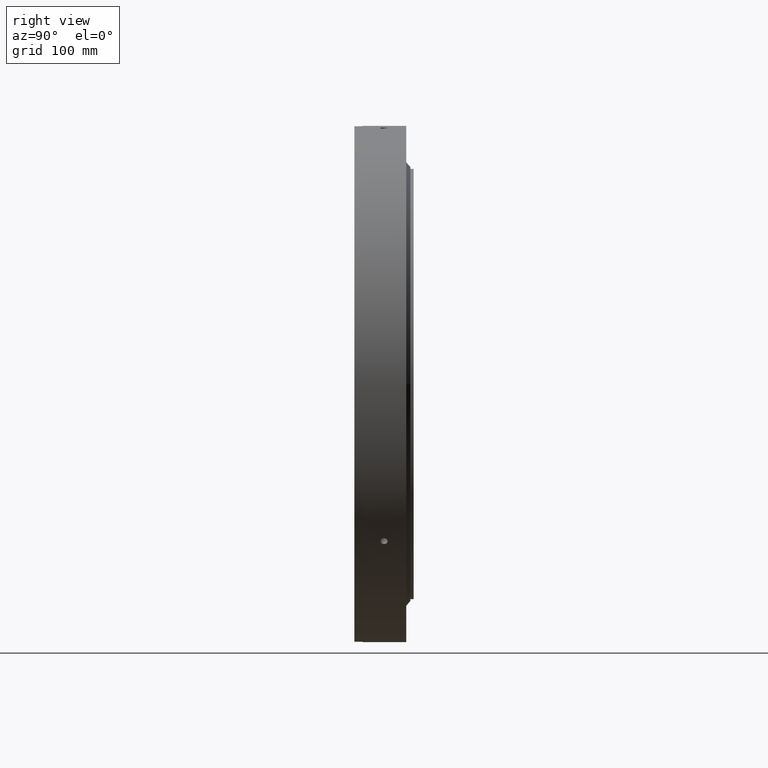
[diagram: clean part render]
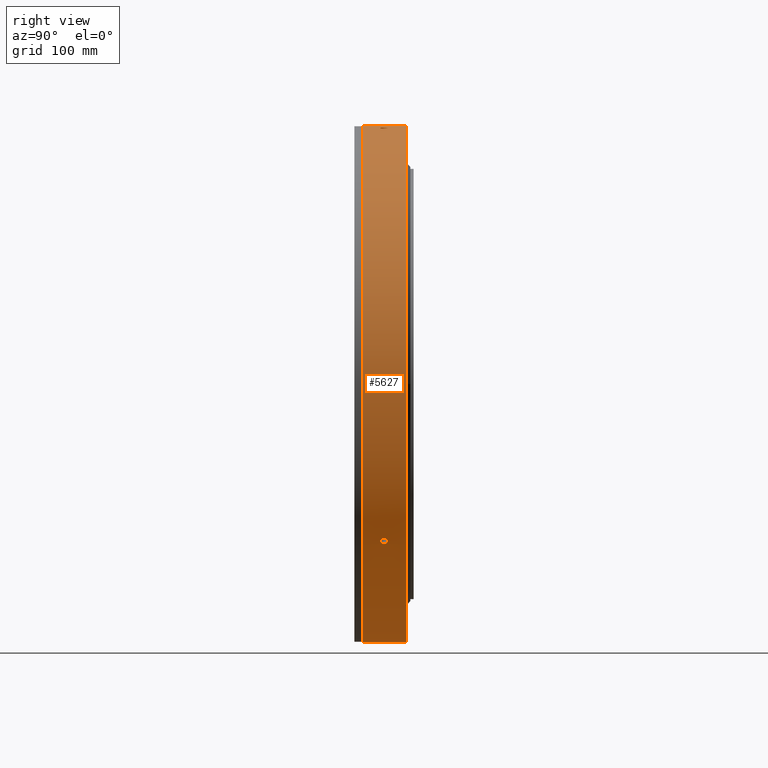
[diagram: same view with one face highlighted and labeled with its STEP entity id]
A machine part, right view. The second image highlights one B-rep face of the part: STEP entity #5627.
In plain terms, the highlighted cylindrical surface (partial cylindrical patch) has radius 313 mm, axis along (-0, 1, -0).
Its self-contained STEP definition (entity closure, byte-faithful):
#2 = CARTESIAN_POINT ( 'NONE',  ( 42.01249492581564500, -4.355841187476847200, 310.1677524236763500 ) ) ;
#4 = CARTESIAN_POINT ( 'NONE',  ( 36.97806128729717300, 2.252569872384337000, 310.8080598504994900 ) ) ;
#10 = CARTESIAN_POINT ( 'NONE',  ( 41.43673768239570900, -4.471353546787452300, 310.2451951983898100 ) ) ;
#13 = CARTESIAN_POINT ( 'NONE',  ( 41.14727925305311400, -4.499895653902052900, 310.2837210659382700 ) ) ;
#26 = CARTESIAN_POINT ( 'NONE',  ( 36.83991738933058700, 1.991454826082301300, 310.8244408747211800 ) ) ;
#33 = CARTESIAN_POINT ( 'NONE',  ( 36.61693397199744000, -1.449127353490576000, 310.8507888122217700 ) ) ;
#55 = CARTESIAN_POINT ( 'NONE',  ( 36.38897377752741800, 4.781560686371049600E-009, 310.8775363184327000 ) ) ;
#57 = CARTESIAN_POINT ( 'NONE',  ( 37.48981214226047600, 2.972155427204408600, 310.7467730453549300 ) ) ;
#73 = CARTESIAN_POINT ( 'NONE',  ( 36.61733785011660600, 1.449893656899620800, 310.8507409145203700 ) ) ;
#78 = CARTESIAN_POINT ( 'NONE',  ( 40.55678157144130600, 4.499748922822593800, 310.3614594326489300 ) ) ;
#109 = CARTESIAN_POINT ( 'NONE',  ( 38.13092356018345400, 3.577392212863129900, 310.6687826988262500 ) ) ;
#115 = CARTESIAN_POINT ( 'NONE',  ( 39.41279675344192400, 4.268828962022665200, 310.5087848326819000 ) ) ;
#130 = CARTESIAN_POINT ( 'NONE',  ( 38.87298644545599300, 4.042871837507990000, 310.5768261332583500 ) ) ;
#159 = VERTEX_POINT ( 'NONE', #1307 ) ;
#163 = CARTESIAN_POINT ( 'NONE',  ( 38.61661957952914300, 3.904560608749239500, 310.6087837897907200 ) ) ;
#173 = CARTESIAN_POINT ( 'NONE',  ( 0.0000000000000000000, -26.00000000000001100, -1.870852563579005500E-015 ) ) ;
#183 = CARTESIAN_POINT ( 'NONE',  ( 40.26715415030922400, 4.470444970941521500, 310.3991607748973800 ) ) ;
#200 = CARTESIAN_POINT ( 'NONE',  ( 41.14511159394957200, 4.500247904899090700, 310.2840115515442700 ) ) ;
#229 = CARTESIAN_POINT ( 'NONE',  ( 45.16788019187426100, 1.173644481258605100, 309.7238544081364500 ) ) ;
#230 = AXIS2_PLACEMENT_3D ( 'NONE', #173, #474, #364 ) ;
#231 = CARTESIAN_POINT ( 'NONE',  ( 37.90717377756580200, -3.392747403317223600, 310.6961382454445600 ) ) ;
#240 = CARTESIAN_POINT ( 'NONE',  ( 36.38897377752743300, -0.2936974223991016300, 310.8775363184327000 ) ) ;
#249 = CARTESIAN_POINT ( 'NONE',  ( 36.53244950377602900, -1.168570931656106100, 310.8607138913116000 ) ) ;
#253 = CARTESIAN_POINT ( 'NONE',  ( 42.28860587565795700, 4.271330160007757100, 310.1302118412396000 ) ) ;
#257 = CARTESIAN_POINT ( 'NONE',  ( 39.69666838837774500, 4.355726754575623100, 310.4726352385803200 ) ) ;
#259 = CARTESIAN_POINT ( 'NONE',  ( 42.82937027364134500, 4.045619703833195600, 310.0559941777648900 ) ) ;
#263 = CARTESIAN_POINT ( 'NONE',  ( 43.56974527745738600, 3.581686789275463600, 309.9527981228477000 ) ) ;
#270 = CARTESIAN_POINT ( 'NONE',  ( 37.49002126320339600, -2.972762010858454900, 310.7467497016172000 ) ) ;
#271 = CARTESIAN_POINT ( 'NONE',  ( 40.56528055425561500, -4.500103770919797500, 310.3603456661436400 ) ) ;
#274 = CARTESIAN_POINT ( 'NONE',  ( 44.72090831962645300, 2.259568660996385900, 309.7887464090662200 ) ) ;
#277 = CARTESIAN_POINT ( 'NONE',  ( 39.41892803318325600, -4.270945890496514100, 310.5080068665233200 ) ) ;
#283 = CARTESIAN_POINT ( 'NONE',  ( 40.26966017895869500, -4.470844184222714000, 310.3988365841547100 ) ) ;
#284 = CARTESIAN_POINT ( 'NONE',  ( 39.69721040011099000, -4.355939892438203600, 310.4725668560346900 ) ) ;
#288 = CARTESIAN_POINT ( 'NONE',  ( 43.79930768056002000, 3.391797598056024700, 309.9204153554657600 ) ) ;
#290 = CARTESIAN_POINT ( 'NONE',  ( 38.87835616195878400, -4.045559581703725100, 310.5761543287733300 ) ) ;
#292 = CARTESIAN_POINT ( 'NONE',  ( 38.61681891911085500, -3.904596301180523800, 310.6087583437070000 ) ) ;
#308 = CARTESIAN_POINT ( 'NONE',  ( 38.13279649819745700, -3.578751981498479000, 310.6685521491962700 ) ) ;
#312 = CARTESIAN_POINT ( 'NONE',  ( 42.29350735768304800, -4.269498376676340400, 310.1295415822266400 ) ) ;
#313 = CARTESIAN_POINT ( 'NONE',  ( 42.83005470384049600, -4.045117715904894800, 310.0558977679388600 ) ) ;
#331 = CARTESIAN_POINT ( 'NONE',  ( 44.85993022911199500, 1.997045766983342100, 309.7686222062096700 ) ) ;
#341 = CARTESIAN_POINT ( 'NONE',  ( 45.31197752989172800, -0.2973295846071527000, 309.7028005884523600 ) ) ;
#347 = CARTESIAN_POINT ( 'NONE',  ( 45.31197752989172000, 4.781559253240726900E-009, 309.7028005884522500 ) ) ;
#349 = CARTESIAN_POINT ( 'NONE',  ( 45.31197752989172000, 4.781559253240726900E-009, 309.7028005884522500 ) ) ;
#352 = CARTESIAN_POINT ( 'NONE',  ( 45.28310382865002700, -0.5896892760800510600, 309.7070289418161300 ) ) ;
#353 = CARTESIAN_POINT ( 'NONE',  ( 45.28311344739518100, 0.5914388478671582800, 309.7070277326145100 ) ) ;
#363 = CARTESIAN_POINT ( 'NONE',  ( 45.16996522805119000, -1.164875585572372700, 309.7235501372472300 ) ) ;
#364 = DIRECTION ( 'NONE',  ( 0.0000000000000000000, 5.542247527082451000E-017, 1.000000000000000000 ) ) ;
#368 = CARTESIAN_POINT ( 'NONE',  ( 45.08432705229464000, -1.450681284605115100, 309.7360428114608900 ) ) ;
#369 = CARTESIAN_POINT ( 'NONE',  ( 44.86073107785225000, -1.995689781120564700, 309.7685064195875400 ) ) ;
#375 = CARTESIAN_POINT ( 'NONE',  ( 44.72389628541721200, -2.254178133049698800, 309.7883144602545300 ) ) ;
#381 = CARTESIAN_POINT ( 'NONE',  ( 44.40057365357417000, -2.743374535401384300, 309.8348200804870200 ) ) ;
#383 = CARTESIAN_POINT ( 'NONE',  ( 45.31197752989173500, 0.2972624423850837000, 309.7028005884524800 ) ) ;
#388 = CARTESIAN_POINT ( 'NONE',  ( 43.80119704142310900, -3.390111961688711000, 309.9201481925617800 ) ) ;
#396 = CARTESIAN_POINT ( 'NONE',  ( 44.21236916611923100, -2.974984258971414200, 309.8617587419909700 ) ) ;
#414 = CARTESIAN_POINT ( 'NONE',  ( 44.39536513953721200, 2.750363332688170900, 309.8355670299333700 ) ) ;
#442 = CARTESIAN_POINT ( 'NONE',  ( 36.98114278795301100, -2.257531372928843500, 310.8076923700738200 ) ) ;
#468 = CARTESIAN_POINT ( 'NONE',  ( 45.08248526435087200, 1.455759623187266000, 309.7363107000595100 ) ) ;
#474 = DIRECTION ( 'NONE',  ( -0.0000000000000000000, 1.000000000000000000, -5.328613396463909800E-017 ) ) ;
#515 = CARTESIAN_POINT ( 'NONE',  ( 3.833144481331215800E-014, 27.00000000000000000, -313.0000000000000000 ) ) ;
#531 = CARTESIAN_POINT ( 'NONE',  ( 0.0000000000000000000, 22.16364734299516900, 313.0000000000000000 ) ) ;
#538 = CARTESIAN_POINT ( 'NONE',  ( 43.08550378603891300, 3.907533659084907500, 310.0204817931043000 ) ) ;
#561 = CARTESIAN_POINT ( 'NONE',  ( 0.0000000000000000000, 27.00000000000000000, 0.0000000000000000000 ) ) ;
#564 = CYLINDRICAL_SURFACE ( 'NONE', #2602, 313.0000000000000000 ) ;
#576 = CARTESIAN_POINT ( 'NONE',  ( 42.00603039288012000, 4.357377239424615700, 310.1686252137570200 ) ) ;
#691 = AXIS2_PLACEMENT_3D ( 'NONE', #561, #714, #790 ) ;
#697 = DIRECTION ( 'NONE',  ( -0.0000000000000000000, 1.000000000000000000, -0.0000000000000000000 ) ) ;
#714 = DIRECTION ( 'NONE',  ( -0.0000000000000000000, 1.000000000000000000, -0.0000000000000000000 ) ) ;
#790 = DIRECTION ( 'NONE',  ( 0.0000000000000000000, 0.0000000000000000000, 1.000000000000000000 ) ) ;
#977 = VERTEX_POINT ( 'NONE', #2963 ) ;
#999 = LINE ( 'NONE', #5775, #5791 ) ;
#1000 = CARTESIAN_POINT ( 'NONE',  ( 37.30477417848354800, -2.744959215117991100, 310.7690145136830300 ) ) ;
#1035 = VERTEX_POINT ( 'NONE', #3441 ) ;
#1189 = CARTESIAN_POINT ( 'NONE',  ( 250.1171616894931200, -3.392747403317210700, -188.1766445997666900 ) ) ;
#1214 = CARTESIAN_POINT ( 'NONE',  ( 36.41820692938615900, -0.5919647935779345200, 310.8741184335072500 ) ) ;
#1242 = CARTESIAN_POINT ( 'NONE',  ( 43.08954377663947400, -3.905342523506585700, 310.0199215152164200 ) ) ;
#1307 = CARTESIAN_POINT ( 'NONE',  ( 3.833144481331215800E-014, -26.00000000000002500, -313.0000000000000000 ) ) ;
#1310 = CARTESIAN_POINT ( 'NONE',  ( 245.5545041678390100, 4.781557114753856100E-009, -194.0927239308231000 ) ) ;
#1437 = CARTESIAN_POINT ( 'NONE',  ( 43.57681870195252600, -3.576387510117315500, 309.9518049487646700 ) ) ;
#1473 = CARTESIAN_POINT ( 'NONE',  ( 245.6971180162413500, -1.450681284605113100, -193.9121939455448000 ) ) ;
#1478 = CARTESIAN_POINT ( 'NONE',  ( 245.6434799551328200, -1.164875585572369600, -193.9801124441768000 ) ) ;
#1490 = CARTESIAN_POINT ( 'NONE',  ( 245.5726028798892500, -0.5896892760800489500, -194.0698327487285200 ) ) ;
#1497 = CARTESIAN_POINT ( 'NONE',  ( 245.5545041678391000, -0.2973295846071530900, -194.0927239308231000 ) ) ;
#1509 = B_SPLINE_CURVE_WITH_KNOTS ( 'NONE', 3,
 ( #1310, #1497, #1490, #1478, #1473, #1692, #1683, #1605, #1632, #1627, #1582, #1581, #1575, #1574, #1620, #1617, #1550, #1598, #1587, #1656, #1567, #1561, #1671, #1669, #1189, #5468, #5486, #5379, #5387, #2342, #5394, #5364, #5369, #5372 ),
 .UNSPECIFIED., .F., .F.,
 ( 4, 2, 2, 2, 2, 2, 2, 2, 2, 2, 2, 2, 2, 2, 2, 2, 4 ),
 ( 1.604020230370983500E-018, 0.0008793274170397583600, 0.001758654834079515000, 0.002637982251119271700, 0.003517309668159028700, 0.004396637085198785600, 0.005275964502238541700, 0.006155291919278298700, 0.007034619336318055600, 0.007913946753357811700, 0.008793274170397569500, 0.009672601587437325600, 0.01055192900447708200, 0.01143125642151684000, 0.01231058383855659600, 0.01318991125559635300, 0.01406923867263611000 ),
 .UNSPECIFIED. ) ;
#1519 = EDGE_LOOP ( 'NONE', ( #4387, #4346, #4350, #4317 ) ) ;
#1550 = CARTESIAN_POINT ( 'NONE',  ( 248.1399451973399000, -4.499895653902052900, -190.7764496627266300 ) ) ;
#1561 = CARTESIAN_POINT ( 'NONE',  ( 249.5276613774137800, -4.045559581703721500, -188.9577212580234400 ) ) ;
#1567 = CARTESIAN_POINT ( 'NONE',  ( 249.1983580082896000, -4.270945890496509600, -189.3917964999500600 ) ) ;
#1574 = CARTESIAN_POINT ( 'NONE',  ( 247.4333077953883700, -4.269498376676340400, -191.6920225780121100 ) ) ;
#1575 = CARTESIAN_POINT ( 'NONE',  ( 247.1012567083047300, -4.045117715904895700, -192.1198643029736400 ) ) ;
#1581 = CARTESIAN_POINT ( 'NONE',  ( 246.9403558231146600, -3.905342523506589700, -192.3266003056607500 ) ) ;
#1582 = CARTESIAN_POINT ( 'NONE',  ( 246.6377276834923000, -3.576387510117317700, -192.7145344863831400 ) ) ;
#1587 = CARTESIAN_POINT ( 'NONE',  ( 248.6784476975323900, -4.470844184222710500, -190.0739670088233300 ) ) ;
#1598 = CARTESIAN_POINT ( 'NONE',  ( 248.4973033970714200, -4.500103770919799300, -190.3107363047012900 ) ) ;
#1605 = CARTESIAN_POINT ( 'NONE',  ( 246.1245383398947700, -2.743374535401383000, -193.3694347668418900 ) ) ;
#1612 = VECTOR ( 'NONE', #697, 1000.000000000000000 ) ;
#1617 = CARTESIAN_POINT ( 'NONE',  ( 247.9618516026687900, -4.471353546787453200, -191.0078650821026800 ) ) ;
#1620 = CARTESIAN_POINT ( 'NONE',  ( 247.6069055707174000, -4.355841187476850800, -191.4677640939605100 ) ) ;
#1627 = CARTESIAN_POINT ( 'NONE',  ( 246.4981229586839200, -3.390111961688715400, -192.8930234503222000 ) ) ;
#1632 = CARTESIAN_POINT ( 'NONE',  ( 246.2419701488284700, -2.974984258971418600, -193.2199142303517200 ) ) ;
#1656 = CARTESIAN_POINT ( 'NONE',  ( 249.0285248754321700, -4.355939892438195600, -189.6150760938903700 ) ) ;
#1669 = CARTESIAN_POINT ( 'NONE',  ( 249.9804600690349900, -3.578751981498477200, -188.3582465593805800 ) ) ;
#1671 = CARTESIAN_POINT ( 'NONE',  ( 249.6866659040357200, -3.904596301180521600, -188.7475253691482100 ) ) ;
#1683 = CARTESIAN_POINT ( 'NONE',  ( 245.9226019754330500, -2.254178133049697900, -193.6261875695202000 ) ) ;
#1692 = CARTESIAN_POINT ( 'NONE',  ( 245.8370303127987000, -1.995689781120562500, -193.7347859555570200 ) ) ;
#1915 = VERTEX_POINT ( 'NONE', #515 ) ;
#2309 = CIRCLE ( 'NONE', #230, 313.0000000000000000 ) ;
#2342 = CARTESIAN_POINT ( 'NONE',  ( 250.8962129118160100, -1.449127353490574000, -187.1365894345593100 ) ) ;
#2542 = CARTESIAN_POINT ( 'NONE',  ( 0.0000000000000000000, 27.00000000000000000, 313.0000000000000000 ) ) ;
#2602 = AXIS2_PLACEMENT_3D ( 'NONE', #2950, #2912, #2955 ) ;
#2631 = CARTESIAN_POINT ( 'NONE',  ( 37.90139096711509800, 3.387315662040350200, 310.6968418496093700 ) ) ;
#2651 = LINE ( 'NONE', #531, #1612 ) ;
#2685 = VERTEX_POINT ( 'NONE', #4581 ) ;
#2730 = B_SPLINE_CURVE_WITH_KNOTS ( 'NONE', 3,
 ( #5417, #5314, #5431, #5438, #5449, #5456, #5480, #5489, #5495, #5511, #5526, #5528, #5536, #5545, #5550, #5553, #5559, #5577, #5582, #5585, #5593, #5600, #5602, #5609, #5610, #5626, #5630, #5636, #5653, #5659, #5660, #5675, #5688, #5701 ),
 .UNSPECIFIED., .F., .F.,
 ( 4, 2, 2, 2, 2, 2, 2, 2, 2, 2, 2, 2, 2, 2, 2, 2, 4 ),
 ( 0.01406923867263611000, 0.01494836749388208000, 0.01582749631512805200, 0.01670662513637402200, 0.01758575395761999300, 0.01846488277886596300, 0.01934401160011193400, 0.02022314042135790700, 0.02110226924260387800, 0.02198139806384984800, 0.02286052688509581500, 0.02373965570634178900, 0.02461878452758775900, 0.02549791334883373000, 0.02637704217007969700, 0.02725617099132567100, 0.02813529981257163700 ),
 .UNSPECIFIED. ) ;
#2912 = DIRECTION ( 'NONE',  ( -0.0000000000000000000, 1.000000000000000000, -0.0000000000000000000 ) ) ;
#2950 = CARTESIAN_POINT ( 'NONE',  ( 0.0000000000000000000, 22.16364734299516900, 0.0000000000000000000 ) ) ;
#2955 = DIRECTION ( 'NONE',  ( 0.0000000000000000000, 0.0000000000000000000, 1.000000000000000000 ) ) ;
#2963 = CARTESIAN_POINT ( 'NONE',  ( 245.5545041678390100, 4.781557114753856100E-009, -194.0927239308231000 ) ) ;
#3428 = ORIENTED_EDGE ( 'NONE', *, *, #5133, .T. ) ;
#3441 = CARTESIAN_POINT ( 'NONE',  ( 251.0333570289176100, 4.781560686371050400E-009, -186.9525438682020400 ) ) ;
#3708 = CARTESIAN_POINT ( 'NONE',  ( 44.21090634847323700, 2.976681268583294000, 309.8619676037174600 ) ) ;
#3716 = B_SPLINE_CURVE_WITH_KNOTS ( 'NONE', 3,
 ( #5823, #5832, #5833, #5851, #73, #26, #4, #5854, #57, #2631, #109, #163, #130, #115, #257, #183, #78, #200, #3755, #576, #253, #259, #538, #263, #288, #3708, #414, #274, #331, #468, #229, #353, #383, #347 ),
 .UNSPECIFIED., .F., .F.,
 ( 4, 2, 2, 2, 2, 2, 2, 2, 2, 2, 2, 2, 2, 2, 2, 2, 4 ),
 ( 0.01406923867263611100, 0.01494836749388208200, 0.01582749631512805200, 0.01670662513637402200, 0.01758575395761999300, 0.01846488277886596700, 0.01934401160011193700, 0.02022314042135790700, 0.02110226924260388100, 0.02198139806384984800, 0.02286052688509581900, 0.02373965570634178900, 0.02461878452758776300, 0.02549791334883373000, 0.02637704217007970400, 0.02725617099132567100, 0.02813529981257164400 ),
 .UNSPECIFIED. ) ;
#3734 = FACE_BOUND ( 'NONE', #4169, .T. ) ;
#3755 = CARTESIAN_POINT ( 'NONE',  ( 41.43616102204845200, 4.471227193688883400, 310.2452694500185000 ) ) ;
#3803 = VERTEX_POINT ( 'NONE', #2542 ) ;
#3873 = FACE_OUTER_BOUND ( 'NONE', #1519, .T. ) ;
#4017 = EDGE_CURVE ( 'NONE', #977, #1035, #1509, .T. ) ;
#4052 = EDGE_LOOP ( 'NONE', ( #4373, #4357 ) ) ;
#4169 = EDGE_LOOP ( 'NONE', ( #4430, #3428 ) ) ;
#4206 = EDGE_CURVE ( 'NONE', #5121, #4303, #4767, .T. ) ;
#4219 = CARTESIAN_POINT ( 'NONE',  ( 36.38897377752741800, 4.781560686371049600E-009, 310.8775363184327000 ) ) ;
#4303 = VERTEX_POINT ( 'NONE', #4219 ) ;
#4317 = ORIENTED_EDGE ( 'NONE', *, *, #5356, .F. ) ;
#4346 = ORIENTED_EDGE ( 'NONE', *, *, #5177, .T. ) ;
#4347 = CIRCLE ( 'NONE', #691, 313.0000000000000000 ) ;
#4350 = ORIENTED_EDGE ( 'NONE', *, *, #5320, .F. ) ;
#4357 = ORIENTED_EDGE ( 'NONE', *, *, #5210, .T. ) ;
#4373 = ORIENTED_EDGE ( 'NONE', *, *, #4206, .T. ) ;
#4387 = ORIENTED_EDGE ( 'NONE', *, *, #5245, .T. ) ;
#4430 = ORIENTED_EDGE ( 'NONE', *, *, #4017, .T. ) ;
#4581 = CARTESIAN_POINT ( 'NONE',  ( 0.0000000000000000000, -25.99999999999999300, 313.0000000000000000 ) ) ;
#4767 = B_SPLINE_CURVE_WITH_KNOTS ( 'NONE', 3,
 ( #349, #341, #352, #363, #368, #369, #375, #381, #396, #388, #1437, #1242, #313, #312, #2, #10, #13, #271, #283, #284, #277, #290, #292, #308, #231, #270, #1000, #442, #4964, #33, #249, #1214, #240, #55 ),
 .UNSPECIFIED., .F., .F.,
 ( 4, 2, 2, 2, 2, 2, 2, 2, 2, 2, 2, 2, 2, 2, 2, 2, 4 ),
 ( 6.672221616458985500E-019, 0.0008793274170397578200, 0.001758654834079515400, 0.002637982251119273500, 0.003517309668159030900, 0.004396637085198788200, 0.005275964502238546100, 0.006155291919278303000, 0.007034619336318060000, 0.007913946753357815200, 0.008793274170397573000, 0.009672601587437329100, 0.01055192900447708900, 0.01143125642151684500, 0.01231058383855660300, 0.01318991125559635700, 0.01406923867263611100 ),
 .UNSPECIFIED. ) ;
#4808 = FACE_BOUND ( 'NONE', #4052, .T. ) ;
#4964 = CARTESIAN_POINT ( 'NONE',  ( 36.84128194959571100, -1.994557629680378600, 310.8242794618859600 ) ) ;
#5121 = VERTEX_POINT ( 'NONE', #5321 ) ;
#5133 = EDGE_CURVE ( 'NONE', #1035, #977, #2730, .T. ) ;
#5177 = EDGE_CURVE ( 'NONE', #159, #1915, #999, .T. ) ;
#5210 = EDGE_CURVE ( 'NONE', #4303, #5121, #3716, .T. ) ;
#5245 = EDGE_CURVE ( 'NONE', #2685, #159, #2309, .T. ) ;
#5314 = CARTESIAN_POINT ( 'NONE',  ( 251.0333570289175500, 0.2936311004996102800, -186.9525438682020100 ) ) ;
#5320 = EDGE_CURVE ( 'NONE', #3803, #1915, #4347, .T. ) ;
#5321 = CARTESIAN_POINT ( 'NONE',  ( 45.31197752989172000, 4.781559253240726900E-009, 309.7028005884522500 ) ) ;
#5356 = EDGE_CURVE ( 'NONE', #2685, #3803, #2651, .T. ) ;
#5364 = CARTESIAN_POINT ( 'NONE',  ( 251.0157804778156400, -0.5919647935779379600, -186.9761515778816900 ) ) ;
#5369 = CARTESIAN_POINT ( 'NONE',  ( 251.0333570289176600, -0.2936974223991041200, -186.9525438682020400 ) ) ;
#5372 = CARTESIAN_POINT ( 'NONE',  ( 251.0333570289176100, 4.781560686371050400E-009, -186.9525438682020400 ) ) ;
#5379 = CARTESIAN_POINT ( 'NONE',  ( 250.6767858901253300, -2.257531372928841300, -187.4304553003850100 ) ) ;
#5387 = CARTESIAN_POINT ( 'NONE',  ( 250.7610811521882700, -1.994557629680376900, -187.3176258072791400 ) ) ;
#5394 = CARTESIAN_POINT ( 'NONE',  ( 250.9470505165531900, -1.168570931656108100, -187.0683862783992900 ) ) ;
#5417 = CARTESIAN_POINT ( 'NONE',  ( 251.0333570289176100, 4.781560686371050400E-009, -186.9525438682020400 ) ) ;
#5431 = CARTESIAN_POINT ( 'NONE',  ( 251.0163573815779600, 0.5854575949762074200, -186.9753770829696600 ) ) ;
#5438 = CARTESIAN_POINT ( 'NONE',  ( 250.9476207135072900, 1.165427093442876800, -187.0676213743694800 ) ) ;
#5449 = CARTESIAN_POINT ( 'NONE',  ( 250.8959694921302300, 1.449893656899616100, -187.1369152544198200 ) ) ;
#5456 = CARTESIAN_POINT ( 'NONE',  ( 250.7619032199368100, 1.991454826082294600, -187.3165247698422000 ) ) ;
#5468 = CARTESIAN_POINT ( 'NONE',  ( 250.3695687534423400, -2.972762010858439800, -187.8406856531625800 ) ) ;
#5480 = CARTESIAN_POINT ( 'NONE',  ( 250.6786448878372700, 2.252569872384320600, -187.4279703827481000 ) ) ;
#5486 = CARTESIAN_POINT ( 'NONE',  ( 250.4814741886617400, -2.744959215117987600, -187.6913893778511800 ) ) ;
#5489 = CARTESIAN_POINT ( 'NONE',  ( 250.4814087697324700, 2.745441691827559300, -187.6914780839260900 ) ) ;
#5495 = CARTESIAN_POINT ( 'NONE',  ( 250.3696935301838400, 2.972155427204409500, -187.8405162209824900 ) ) ;
#5511 = CARTESIAN_POINT ( 'NONE',  ( 250.1206624337995400, 3.387315662040351500, -188.1719883410935900 ) ) ;
#5526 = CARTESIAN_POINT ( 'NONE',  ( 249.9815961998784000, 3.577392212863128600, -188.3567398222957100 ) ) ;
#5528 = CARTESIAN_POINT ( 'NONE',  ( 249.6867876107814700, 3.904560608749238200, -188.7473654590483000 ) ) ;
#5536 = CARTESIAN_POINT ( 'NONE',  ( 249.5309280354156300, 4.042871837507993500, -188.9534068493634000 ) ) ;
#5545 = CARTESIAN_POINT ( 'NONE',  ( 249.2020973866168300, 4.268828962022667800, -189.3868756390156400 ) ) ;
#5550 = CARTESIAN_POINT ( 'NONE',  ( 249.0288551023204500, 4.355726754575626600, -189.6146408892330400 ) ) ;
#5553 = CARTESIAN_POINT ( 'NONE',  ( 248.6799814692758700, 4.470444970941525000, -190.0719588197216000 ) ) ;
#5559 = CARTESIAN_POINT ( 'NONE',  ( 248.5025174385660000, 4.499748922822592900, -190.3039328529303900 ) ) ;
#5577 = CARTESIAN_POINT ( 'NONE',  ( 248.1412805948059200, 4.500247904899091500, -190.7747176576792500 ) ) ;
#5582 = CARTESIAN_POINT ( 'NONE',  ( 247.9622042366391400, 4.471227193688887000, -191.0074028054069100 ) ) ;
#5585 = CARTESIAN_POINT ( 'NONE',  ( 247.6108936955672000, 4.357377239424619300, -191.4626020392550500 ) ) ;
#5593 = CARTESIAN_POINT ( 'NONE',  ( 247.4363389977332000, 4.271330160007758000, -191.6881128995686400 ) ) ;
#5600 = CARTESIAN_POINT ( 'NONE',  ( 247.1016824167630000, 4.045619703833195600, -192.1193197739471000 ) ) ;
#5602 = CARTESIAN_POINT ( 'NONE',  ( 246.9428610332991000, 3.907533659084916300, -192.3233817101136100 ) ) ;
#5609 = CARTESIAN_POINT ( 'NONE',  ( 246.6421245097263000, 3.581686789275475100, -192.7089053081201900 ) ) ;
#5610 = CARTESIAN_POINT ( 'NONE',  ( 246.4992990089772900, 3.391797598056032600, -192.8915207972698600 ) ) ;
#5626 = CARTESIAN_POINT ( 'NONE',  ( 246.2428824372126400, 2.976681268583302000, -193.2187518239724400 ) ) ;
#5627 = ADVANCED_FACE ( 'NONE', ( #4808, #3734, #3873 ), #564, .T. ) ;
#5630 = CARTESIAN_POINT ( 'NONE',  ( 246.1277894741090800, 2.750363332688161600, -193.3652975360931500 ) ) ;
#5636 = CARTESIAN_POINT ( 'NONE',  ( 245.9244700369725400, 2.259568660996375200, -193.6238158896456400 ) ) ;
#5653 = CARTESIAN_POINT ( 'NONE',  ( 245.8375310113251000, 1.997045766983340800, -193.7341502935144600 ) ) ;
#5659 = CARTESIAN_POINT ( 'NONE',  ( 245.6982709085451100, 1.455759623187264700, -193.9107328546963900 ) ) ;
#5660 = CARTESIAN_POINT ( 'NONE',  ( 245.6447859795410700, 1.173644481258606200, -193.9784588853244100 ) ) ;
#5675 = CARTESIAN_POINT ( 'NONE',  ( 245.5725970233171700, 0.5914388478671579500, -194.0698404742052500 ) ) ;
#5688 = CARTESIAN_POINT ( 'NONE',  ( 245.5545041678390100, 0.2972624423850827000, -194.0927239308231300 ) ) ;
#5701 = CARTESIAN_POINT ( 'NONE',  ( 245.5545041678390100, 4.781557114753856100E-009, -194.0927239308231000 ) ) ;
#5758 = DIRECTION ( 'NONE',  ( -0.0000000000000000000, 1.000000000000000000, -0.0000000000000000000 ) ) ;
#5775 = CARTESIAN_POINT ( 'NONE',  ( 3.833144481331215800E-014, 22.16364734299516900, -313.0000000000000000 ) ) ;
#5791 = VECTOR ( 'NONE', #5758, 1000.000000000000000 ) ;
#5823 = CARTESIAN_POINT ( 'NONE',  ( 36.38897377752741800, 4.781560686371049600E-009, 310.8775363184327000 ) ) ;
#5832 = CARTESIAN_POINT ( 'NONE',  ( 36.38897377752742600, 0.2936311004996143300, 310.8775363184327600 ) ) ;
#5833 = CARTESIAN_POINT ( 'NONE',  ( 36.41724774523608200, 0.5854575949762104200, 310.8742307993649100 ) ) ;
#5851 = CARTESIAN_POINT ( 'NONE',  ( 36.53150197897770800, 1.165427093442880300, 310.8608252443439700 ) ) ;
#5854 = CARTESIAN_POINT ( 'NONE',  ( 37.30488370966251900, 2.745441691827571300, 310.7690022122659500 ) ) ;